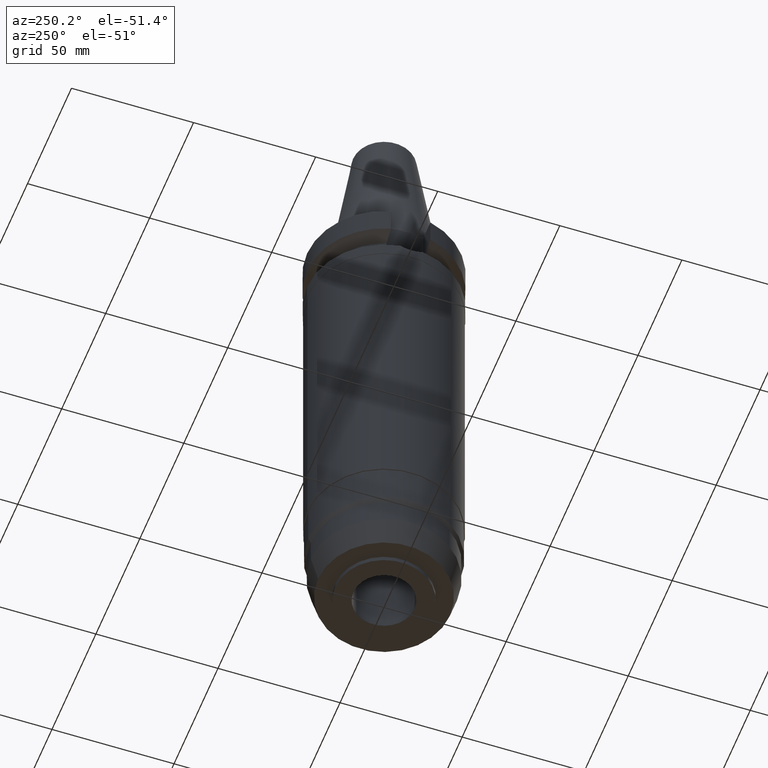
[diagram: clean part render]
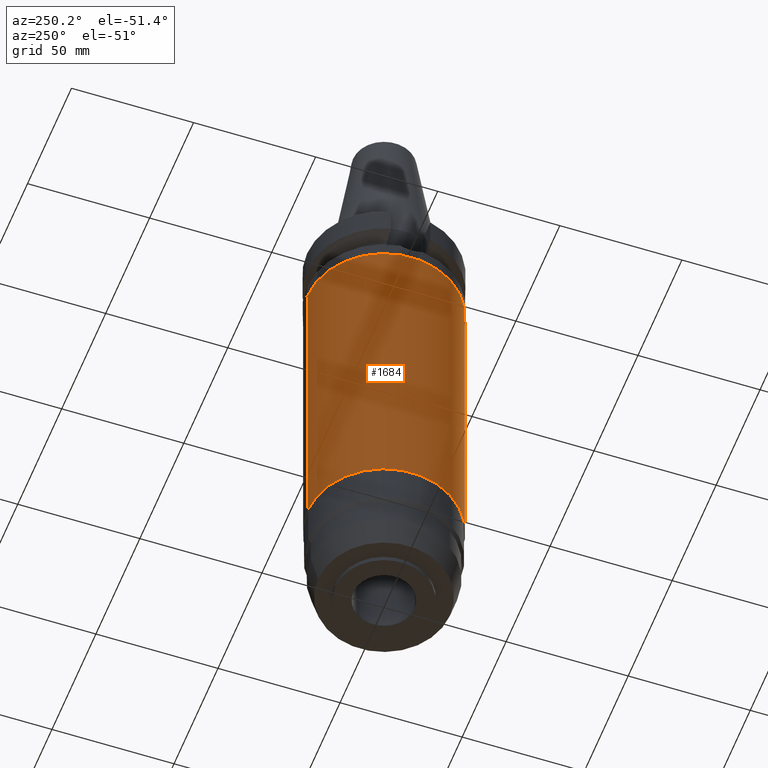
[diagram: same view with one face highlighted and labeled with its STEP entity id]
A machine part, auxiliary view. The second image highlights one B-rep face of the part: STEP entity #1684.
In plain terms, the highlighted cylindrical surface (partial cylindrical patch) has radius 31.35 mm, axis along (0, 0, -1).
Its self-contained STEP definition (entity closure, byte-faithful):
#640=CARTESIAN_POINT('',(0.E0,2.189301082836E-14,-2.7E1));
#641=DIRECTION('',(0.E0,0.E0,-1.E0));
#642=DIRECTION('',(0.E0,-1.E0,0.E0));
#643=AXIS2_PLACEMENT_3D('',#640,#641,#642);
#656=DIRECTION('',(0.E0,0.E0,-1.E0));
#657=VECTOR('',#656,1.329E2);
#658=CARTESIAN_POINT('',(0.E0,-3.135E1,-2.7E1));
#659=LINE('',#658,#657);
#663=DIRECTION('',(0.E0,0.E0,-1.E0));
#664=VECTOR('',#663,1.329E2);
#665=CARTESIAN_POINT('',(0.E0,3.135E1,-2.7E1));
#666=LINE('',#665,#664);
#678=CARTESIAN_POINT('',(0.E0,2.189301082836E-14,-1.599E2));
#679=DIRECTION('',(0.E0,0.E0,1.E0));
#680=DIRECTION('',(0.E0,1.E0,0.E0));
#681=AXIS2_PLACEMENT_3D('',#678,#679,#680);
#1134=CARTESIAN_POINT('',(0.E0,-3.135E1,-1.599E2));
#1135=CARTESIAN_POINT('',(0.E0,3.135E1,-1.599E2));
#1136=VERTEX_POINT('',#1134);
#1137=VERTEX_POINT('',#1135);
#1138=CARTESIAN_POINT('',(0.E0,3.135E1,-2.7E1));
#1139=VERTEX_POINT('',#1138);
#1140=CARTESIAN_POINT('',(0.E0,-3.135E1,-2.7E1));
#1141=VERTEX_POINT('',#1140);
#1670=CARTESIAN_POINT('',(0.E0,2.189301082836E-14,7.877E1));
#1671=DIRECTION('',(0.E0,0.E0,-1.E0));
#1672=DIRECTION('',(0.E0,-1.E0,0.E0));
#1673=AXIS2_PLACEMENT_3D('',#1670,#1671,#1672);
#1674=CYLINDRICAL_SURFACE('',#1673,3.135E1);
#1676=ORIENTED_EDGE('',*,*,#1675,.F.);
#1677=ORIENTED_EDGE('',*,*,#1663,.F.);
#1679=ORIENTED_EDGE('',*,*,#1678,.T.);
#1681=ORIENTED_EDGE('',*,*,#1680,.F.);
#1682=EDGE_LOOP('',(#1676,#1677,#1679,#1681));
#1683=FACE_OUTER_BOUND('',#1682,.F.);
#644=CIRCLE('',#643,3.135E1);
#682=CIRCLE('',#681,3.135E1);
#1663=EDGE_CURVE('',#1141,#1139,#644,.T.);
#1675=EDGE_CURVE('',#1139,#1137,#666,.T.);
#1678=EDGE_CURVE('',#1141,#1136,#659,.T.);
#1680=EDGE_CURVE('',#1137,#1136,#682,.T.);
#1684=ADVANCED_FACE('',(#1683),#1674,.T.);